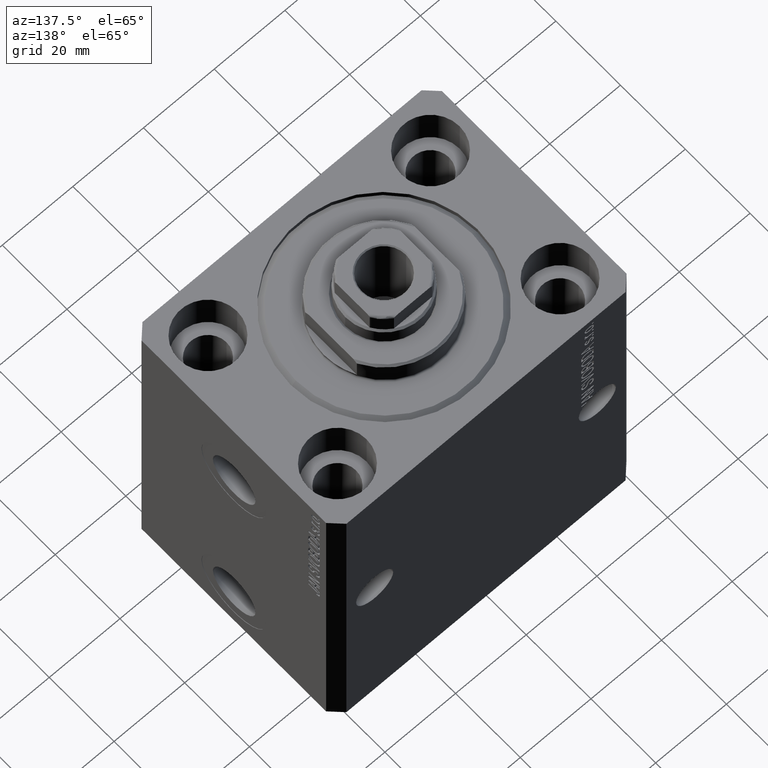
[diagram: clean part render]
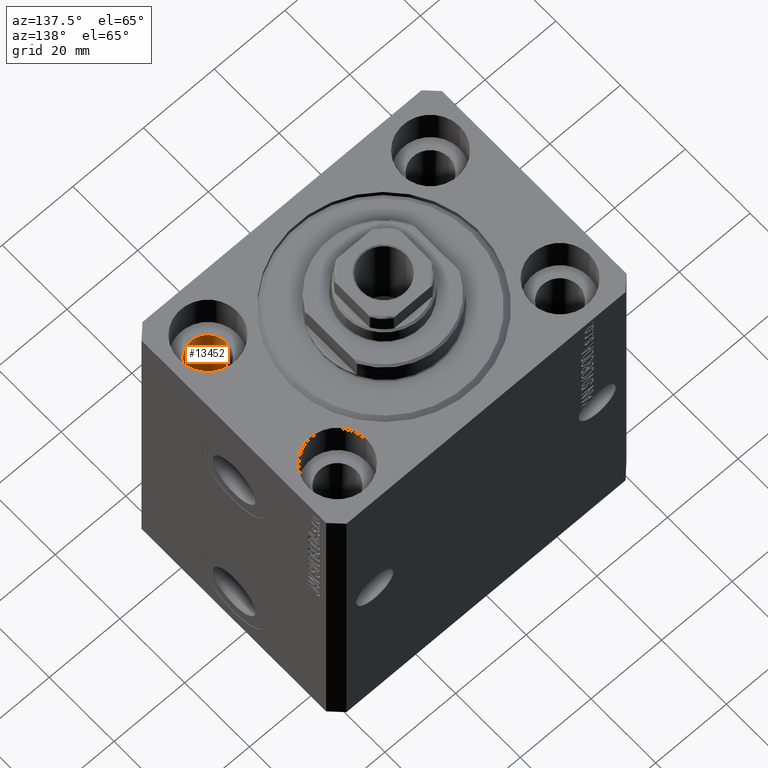
[diagram: same view with one face highlighted and labeled with its STEP entity id]
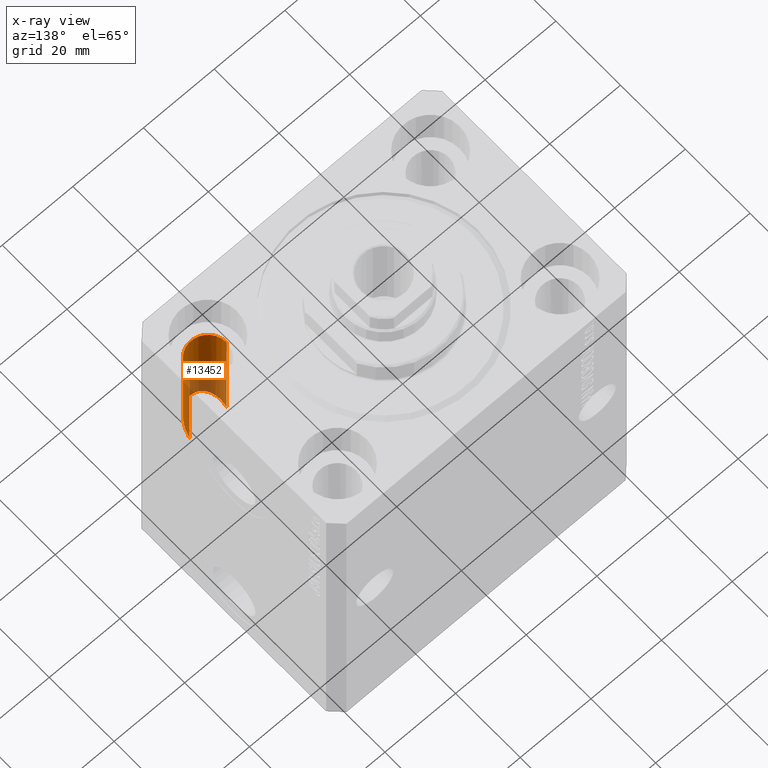
[diagram: x-ray of the same camera — body ghosted, the highlighted face saturated]
A machine part, auxiliary view. The second image highlights one B-rep face of the part: STEP entity #13452.
The next image is the same camera in x-ray: the body ghosted, the highlighted face saturated — about 48% of this face is hidden behind the body in this view.
In plain terms, the highlighted cylindrical surface (edge-blend (fillet) strip) has radius 5.25 mm, axis along (0, 0, 1).
Its self-contained STEP definition (entity closure, byte-faithful):
#1385 = ORIENTED_EDGE ( 'NONE', *, *, #11274, .T. ) ;
#2421 = VERTEX_POINT ( 'NONE', #34033 ) ;
#2953 = EDGE_CURVE ( 'NONE', #7309, #38074, #16997, .T. ) ;
#3759 =( BOUNDED_CURVE ( )  B_SPLINE_CURVE ( 3, ( #25467, #35332, #8076, #28445 ),
 .UNSPECIFIED., .F., .F. ) 
 B_SPLINE_CURVE_WITH_KNOTS ( ( 4, 4 ),
 ( 4.712388980384689674, 7.853981633974482790 ),
 .UNSPECIFIED. ) 
 CURVE ( )  GEOMETRIC_REPRESENTATION_ITEM ( )  RATIONAL_B_SPLINE_CURVE ( ( 1.000000000000000000, 0.3333333333333333703, 0.3333333333333333703, 1.000000000000000000 ) ) 
 REPRESENTATION_ITEM ( '' )  );
#3988 = CARTESIAN_POINT ( 'NONE',  ( 31.50000000000000000, -20.00000000000000000, -11.00000000000000000 ) ) ;
#4550 = LINE ( 'NONE', #40306, #25396 ) ;
#6589 = EDGE_LOOP ( 'NONE', ( #8968, #1385, #41047, #39238 ) ) ;
#7309 = VERTEX_POINT ( 'NONE', #28128 ) ;
#8076 = CARTESIAN_POINT ( 'NONE',  ( 26.25000000000001776, -30.49999999999999645, -32.50000000000000711 ) ) ;
#8551 = CARTESIAN_POINT ( 'NONE',  ( 26.25000000000000355, -20.00000000000000000, -93.00000000000000000 ) ) ;
#8968 = ORIENTED_EDGE ( 'NONE', *, *, #24665, .T. ) ;
#10440 = AXIS2_PLACEMENT_3D ( 'NONE', #3988, #31946, #18656 ) ;
#11274 = EDGE_CURVE ( 'NONE', #2421, #7309, #33046, .T. ) ;
#13452 = ADVANCED_FACE ( 'NONE', ( #28654 ), #42658, .F. ) ;
#16872 = VERTEX_POINT ( 'NONE', #25071 ) ;
#16997 = CIRCLE ( 'NONE', #10440, 5.249999999999997335 ) ;
#17901 = DIRECTION ( 'NONE',  ( 1.000000000000000000, 0.000000000000000000, 0.000000000000000000 ) ) ;
#18580 = CARTESIAN_POINT ( 'NONE',  ( 31.50000000000000000, -20.00000000000000000, -93.00000000000000000 ) ) ;
#18656 = DIRECTION ( 'NONE',  ( 1.000000000000000000, 0.000000000000000000, 0.000000000000000000 ) ) ;
#19215 = DIRECTION ( 'NONE',  ( -0.000000000000000000, -0.000000000000000000, 1.000000000000000000 ) ) ;
#19298 = EDGE_CURVE ( 'NONE', #16872, #38074, #4550, .T. ) ;
#22725 = DIRECTION ( 'NONE',  ( -0.000000000000000000, -0.000000000000000000, 1.000000000000000000 ) ) ;
#23837 = VECTOR ( 'NONE', #22725, 1000.000000000000000 ) ;
#24665 = EDGE_CURVE ( 'NONE', #16872, #2421, #3759, .T. ) ;
#25071 = CARTESIAN_POINT ( 'NONE',  ( 36.75000000000000711, -20.00000000000000355, -43.00000000000000000 ) ) ;
#25396 = VECTOR ( 'NONE', #19215, 1000.000000000000000 ) ;
#25467 = CARTESIAN_POINT ( 'NONE',  ( 36.75000000000000711, -20.00000000000000355, -43.00000000000000000 ) ) ;
#26509 = CARTESIAN_POINT ( 'NONE',  ( 36.75000000000000000, -20.00000000000000000, -11.00000000000000000 ) ) ;
#27551 = AXIS2_PLACEMENT_3D ( 'NONE', #18580, #35992, #17901 ) ;
#28128 = CARTESIAN_POINT ( 'NONE',  ( 26.25000000000000355, -20.00000000000000000, -11.00000000000000000 ) ) ;
#28445 = CARTESIAN_POINT ( 'NONE',  ( 26.25000000000001066, -20.00000000000000355, -43.00000000000000000 ) ) ;
#28654 = FACE_OUTER_BOUND ( 'NONE', #6589, .T. ) ;
#31946 = DIRECTION ( 'NONE',  ( 0.000000000000000000, 0.000000000000000000, 1.000000000000000000 ) ) ;
#33046 = LINE ( 'NONE', #8551, #23837 ) ;
#34033 = CARTESIAN_POINT ( 'NONE',  ( 26.25000000000001066, -20.00000000000000355, -43.00000000000000000 ) ) ;
#35332 = CARTESIAN_POINT ( 'NONE',  ( 36.75000000000000000, -30.49999999999999645, -32.50000000000000711 ) ) ;
#35992 = DIRECTION ( 'NONE',  ( -0.000000000000000000, -0.000000000000000000, 1.000000000000000000 ) ) ;
#38074 = VERTEX_POINT ( 'NONE', #26509 ) ;
#39238 = ORIENTED_EDGE ( 'NONE', *, *, #19298, .F. ) ;
#40306 = CARTESIAN_POINT ( 'NONE',  ( 36.75000000000000000, -20.00000000000000000, -93.00000000000000000 ) ) ;
#41047 = ORIENTED_EDGE ( 'NONE', *, *, #2953, .T. ) ;
#42658 = CYLINDRICAL_SURFACE ( 'NONE', #27551, 5.249999999999997335 ) ;